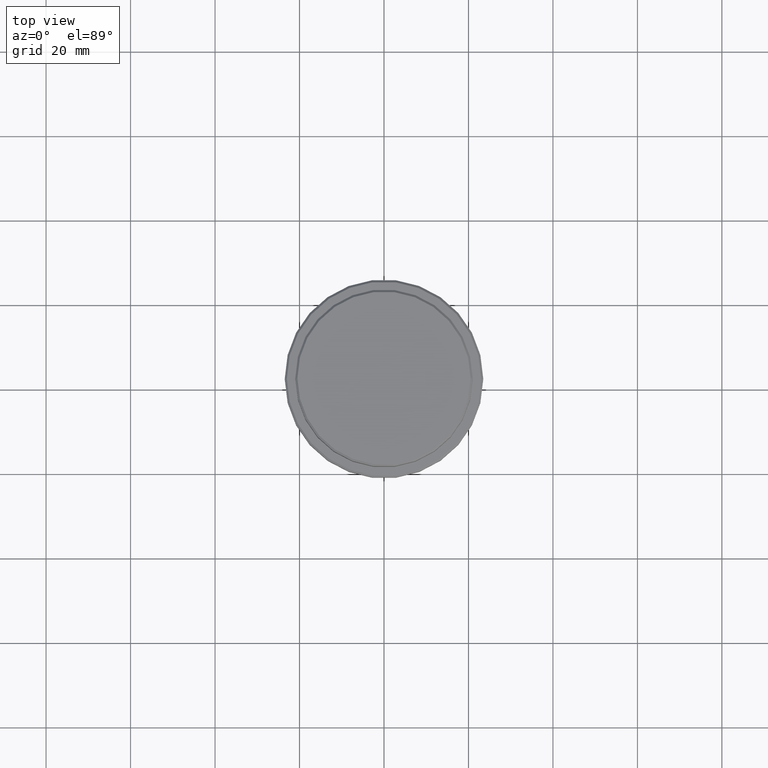
[diagram: clean part render]
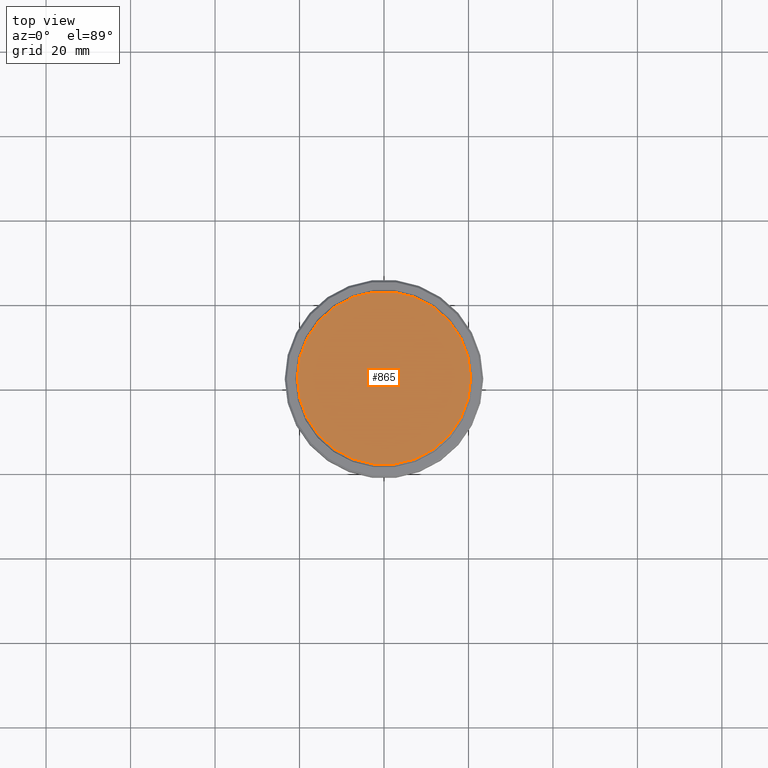
[diagram: same view with one face highlighted and labeled with its STEP entity id]
A machine part, top view. The second image highlights one B-rep face of the part: STEP entity #865.
In plain terms, the highlighted planar face has unit normal (0, -0, 1).
Its self-contained STEP definition (entity closure, byte-faithful):
#49 = DIRECTION ( 'NONE',  ( -0.000000000000000000, -0.000000000000000000, 1.000000000000000000 ) ) ;
#59 = DIRECTION ( 'NONE',  ( 0.000000000000000000, -0.000000000000000000, 1.000000000000000000 ) ) ;
#70 = ORIENTED_EDGE ( 'NONE', *, *, #1177, .T. ) ;
#117 = AXIS2_PLACEMENT_3D ( 'NONE', #148, #59, #1369 ) ;
#148 = CARTESIAN_POINT ( 'NONE',  ( 0.000000000000000000, 0.000000000000000000, 0.000000000000000000 ) ) ;
#202 = DIRECTION ( 'NONE',  ( -0.000000000000000000, -0.000000000000000000, 1.000000000000000000 ) ) ;
#329 = ORIENTED_EDGE ( 'NONE', *, *, #589, .T. ) ;
#464 = CIRCLE ( 'NONE', #1360, 20.49999999999997513 ) ;
#500 = PLANE ( 'NONE',  #117 ) ;
#528 = CIRCLE ( 'NONE', #1187, 20.49999999999997513 ) ;
#589 = EDGE_CURVE ( 'NONE', #643, #918, #528, .T. ) ;
#637 = CARTESIAN_POINT ( 'NONE',  ( 0.000000000000000000, 0.000000000000000000, 0.000000000000000000 ) ) ;
#640 = DIRECTION ( 'NONE',  ( 1.000000000000000000, 0.000000000000000000, 0.000000000000000000 ) ) ;
#643 = VERTEX_POINT ( 'NONE', #786 ) ;
#786 = CARTESIAN_POINT ( 'NONE',  ( 20.49999999999997513, 2.541142108230756691E-15, 0.000000000000000000 ) ) ;
#865 = ADVANCED_FACE ( 'NONE', ( #1123 ), #500, .T. ) ;
#918 = VERTEX_POINT ( 'NONE', #1178 ) ;
#1020 = CARTESIAN_POINT ( 'NONE',  ( 0.000000000000000000, 0.000000000000000000, 0.000000000000000000 ) ) ;
#1100 = EDGE_LOOP ( 'NONE', ( #70, #329 ) ) ;
#1123 = FACE_OUTER_BOUND ( 'NONE', #1100, .T. ) ;
#1177 = EDGE_CURVE ( 'NONE', #918, #643, #464, .T. ) ;
#1178 = CARTESIAN_POINT ( 'NONE',  ( -20.49999999999997513, 0.000000000000000000, 0.000000000000000000 ) ) ;
#1187 = AXIS2_PLACEMENT_3D ( 'NONE', #637, #202, #640 ) ;
#1343 = DIRECTION ( 'NONE',  ( 1.000000000000000000, 0.000000000000000000, 0.000000000000000000 ) ) ;
#1360 = AXIS2_PLACEMENT_3D ( 'NONE', #1020, #49, #1343 ) ;
#1369 = DIRECTION ( 'NONE',  ( 1.000000000000000000, 0.000000000000000000, 0.000000000000000000 ) ) ;